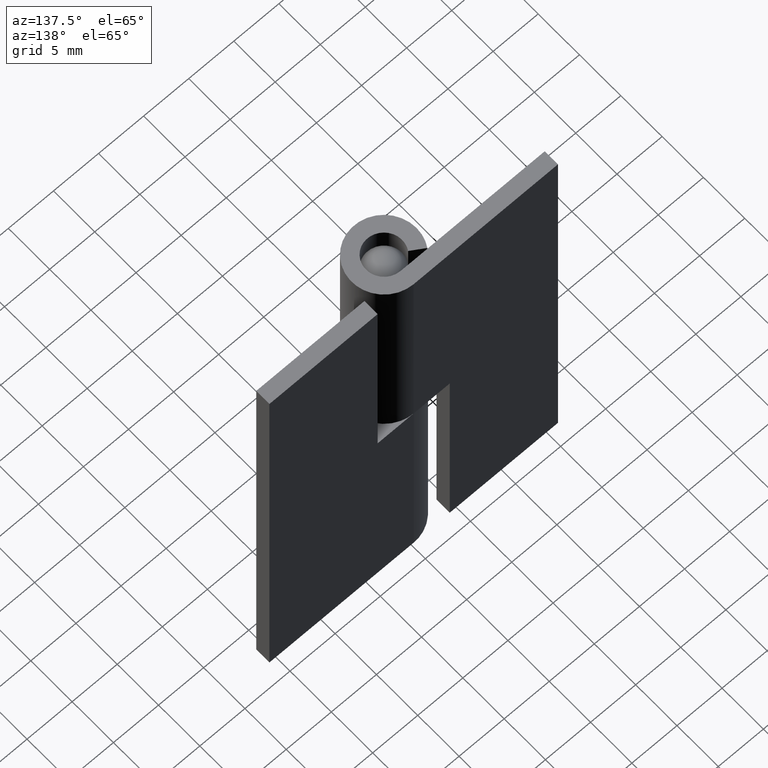
[diagram: clean part render]
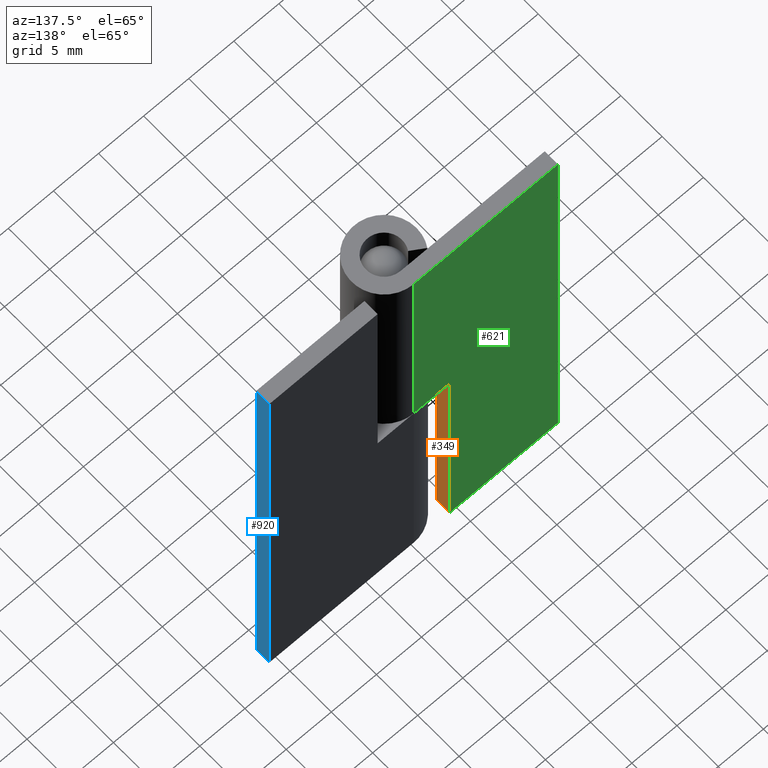
[diagram: same view with three faces highlighted in distinct colors, each labeled with its STEP entity id]
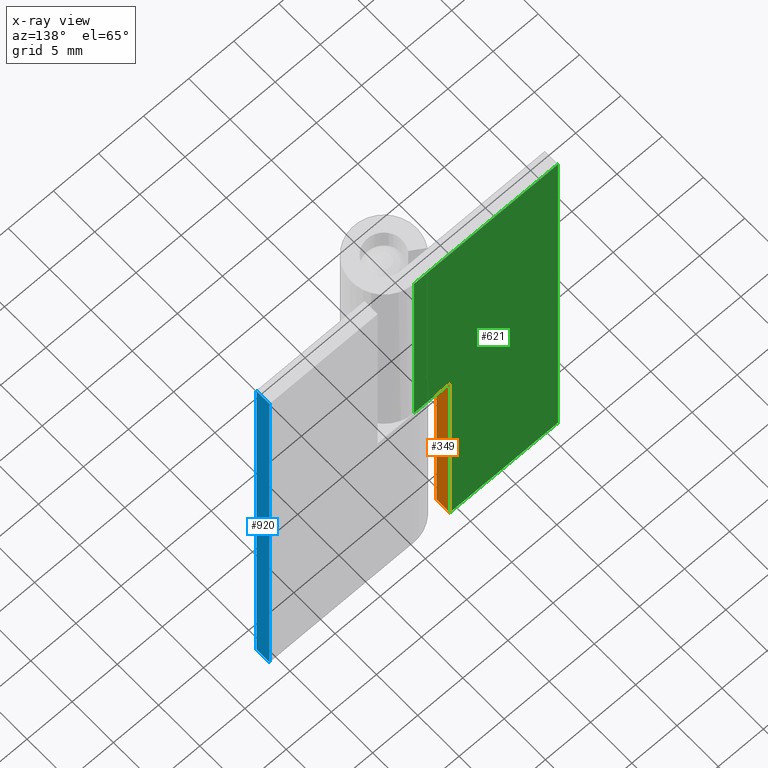
[diagram: x-ray of the same camera — body ghosted, the three highlighted faces saturated]
A machine part, auxiliary view with three faces highlighted in distinct colors.
The next image is the same camera in x-ray (body ghosted, the three faces saturated) — at least one of them is partly hidden behind the body in this view.
Their STEP definitions:

[orange] entity #349 — the highlighted face is a freeform B-spline surface patch.
#314=CARTESIAN_POINT('',(-4.0,1.920080103001107,-1.248749951545149));
#315=CARTESIAN_POINT('',(-4.0,1.920080103001107,26.248750622097401));
#316=CARTESIAN_POINT('',(-4.0,3.679917939914185,-1.248749951545149));
#317=CARTESIAN_POINT('',(-4.0,3.679917939914185,26.248750622097401));
#318=B_SPLINE_SURFACE_WITH_KNOTS('',1,1,((#314,#316),(#315,#317)),.UNSPECIFIED.,.F.,.F.,.U.,(2,2),(2,2),(0.0,27.497500573642551),(0.041708334948495,0.958291687403247),.UNSPECIFIED.);
#319=CARTESIAN_POINT('',(-4.0,2.0,25.0));
#320=VERTEX_POINT('',#319);
#321=CARTESIAN_POINT('',(-4.0,2.0,0.0));
#322=VERTEX_POINT('',#321);
#323=CARTESIAN_POINT('',(-4.0,2.0,25.0));
#324=CARTESIAN_POINT('',(-4.0,2.0,0.0));
#325=QUASI_UNIFORM_CURVE('',1,(#323,#324),.UNSPECIFIED.,.F.,.U.);
#326=EDGE_CURVE('',#320,#322,#325,.T.);
#327=ORIENTED_EDGE('',*,*,#326,.T.);
#328=CARTESIAN_POINT('',(-4.0,3.599998000000000,0.0));
#329=VERTEX_POINT('',#328);
#330=CARTESIAN_POINT('',(-4.0,3.599998000000000,0.0));
#331=CARTESIAN_POINT('',(-4.0,2.0,0.0));
#332=QUASI_UNIFORM_CURVE('',1,(#330,#331),.UNSPECIFIED.,.F.,.U.);
#333=EDGE_CURVE('',#329,#322,#332,.T.);
#334=ORIENTED_EDGE('',*,*,#333,.F.);
#335=CARTESIAN_POINT('',(-4.0,3.599998000000000,25.0));
#336=VERTEX_POINT('',#335);
#337=CARTESIAN_POINT('',(-4.0,3.599998000000000,25.0));
#338=CARTESIAN_POINT('',(-4.0,3.599998000000000,0.0));
#339=QUASI_UNIFORM_CURVE('',1,(#337,#338),.UNSPECIFIED.,.F.,.U.);
#340=EDGE_CURVE('',#336,#329,#339,.T.);
#341=ORIENTED_EDGE('',*,*,#340,.F.);
#342=CARTESIAN_POINT('',(-4.0,3.599998000000000,25.0));
#343=CARTESIAN_POINT('',(-4.0,2.0,25.0));
#344=QUASI_UNIFORM_CURVE('',1,(#342,#343),.UNSPECIFIED.,.F.,.U.);
#345=EDGE_CURVE('',#336,#320,#344,.T.);
#346=ORIENTED_EDGE('',*,*,#345,.T.);
#347=EDGE_LOOP('',(#327,#334,#341,#346));
#348=FACE_OUTER_BOUND('',#347,.T.);
#349=ADVANCED_FACE('',(#348),#318,.F.);

[blue] entity #920 — the highlighted face is a freeform B-spline surface patch.
#871=CARTESIAN_POINT('',(16.0,3.599998000000000,0.0));
#872=VERTEX_POINT('',#871);
#878=CARTESIAN_POINT('',(16.0,2.0,0.0));
#879=VERTEX_POINT('',#878);
#880=CARTESIAN_POINT('',(16.0,2.0,0.0));
#881=CARTESIAN_POINT('',(16.0,3.599998000000000,0.0));
#882=QUASI_UNIFORM_CURVE('',1,(#880,#881),.UNSPECIFIED.,.F.,.U.);
#883=EDGE_CURVE('',#879,#872,#882,.T.);
#893=CARTESIAN_POINT('',(16.0,1.920080103001107,52.497491972854569));
#894=CARTESIAN_POINT('',(16.0,1.920080103001107,-2.497500866924001));
#895=CARTESIAN_POINT('',(16.0,3.679917939914185,52.497491972854561));
#896=CARTESIAN_POINT('',(16.0,3.679917939914185,-2.497500866924001));
#897=B_SPLINE_SURFACE_WITH_KNOTS('',1,1,((#893,#895),(#894,#896)),.UNSPECIFIED.,.F.,.F.,.U.,(2,2),(2,2),(0.0,54.994992839778568),(0.041708334948495,0.958291687403247),.UNSPECIFIED.);
#898=CARTESIAN_POINT('',(16.0,2.0,49.999992000000098));
#899=VERTEX_POINT('',#898);
#900=CARTESIAN_POINT('',(16.0,3.599998000000000,49.999992000000098));
#901=VERTEX_POINT('',#900);
#902=CARTESIAN_POINT('',(16.0,2.0,49.999992000000098));
#903=CARTESIAN_POINT('',(16.0,3.599998000000000,49.999992000000098));
#904=QUASI_UNIFORM_CURVE('',1,(#902,#903),.UNSPECIFIED.,.F.,.U.);
#905=EDGE_CURVE('',#899,#901,#904,.T.);
#906=ORIENTED_EDGE('',*,*,#905,.F.);
#907=CARTESIAN_POINT('',(16.0,2.0,0.0));
#908=CARTESIAN_POINT('',(16.0,2.0,49.999992000000098));
#909=QUASI_UNIFORM_CURVE('',1,(#907,#908),.UNSPECIFIED.,.F.,.U.);
#910=EDGE_CURVE('',#879,#899,#909,.T.);
#911=ORIENTED_EDGE('',*,*,#910,.F.);
#912=ORIENTED_EDGE('',*,*,#883,.T.);
#913=CARTESIAN_POINT('',(16.0,3.599998000000000,0.0));
#914=CARTESIAN_POINT('',(16.0,3.599998000000000,49.999992000000098));
#915=QUASI_UNIFORM_CURVE('',1,(#913,#914),.UNSPECIFIED.,.F.,.U.);
#916=EDGE_CURVE('',#872,#901,#915,.T.);
#917=ORIENTED_EDGE('',*,*,#916,.T.);
#918=EDGE_LOOP('',(#906,#911,#912,#917));
#919=FACE_OUTER_BOUND('',#918,.T.);
#920=ADVANCED_FACE('',(#919),#897,.T.);

[green] entity #621 — the highlighted face is a freeform B-spline surface patch.
#328=CARTESIAN_POINT('',(-4.0,3.599998000000000,0.0));
#329=VERTEX_POINT('',#328);
#335=CARTESIAN_POINT('',(-4.0,3.599998000000000,25.0));
#336=VERTEX_POINT('',#335);
#337=CARTESIAN_POINT('',(-4.0,3.599998000000000,25.0));
#338=CARTESIAN_POINT('',(-4.0,3.599998000000000,0.0));
#339=QUASI_UNIFORM_CURVE('',1,(#337,#338),.UNSPECIFIED.,.F.,.U.);
#340=EDGE_CURVE('',#336,#329,#339,.T.);
#412=CARTESIAN_POINT('',(-0.003794732665986,3.599998000000000,25.0));
#413=VERTEX_POINT('',#412);
#414=CARTESIAN_POINT('',(-0.003794732665986,3.599998000000000,25.0));
#415=CARTESIAN_POINT('',(-4.0,3.599998000000000,25.0));
#416=QUASI_UNIFORM_CURVE('',1,(#414,#415),.UNSPECIFIED.,.F.,.U.);
#417=EDGE_CURVE('',#413,#336,#416,.T.);
#441=CARTESIAN_POINT('',(-0.003794732665986,3.599998000000000,49.999992000000098));
#442=VERTEX_POINT('',#441);
#462=CARTESIAN_POINT('',(-16.0,3.599998000000000,49.999992000000098));
#463=VERTEX_POINT('',#462);
#464=CARTESIAN_POINT('',(-0.003794732665986,3.599998000000000,49.999992000000098));
#465=CARTESIAN_POINT('',(-16.0,3.599998000000000,49.999992000000098));
#466=QUASI_UNIFORM_CURVE('',1,(#464,#465),.UNSPECIFIED.,.F.,.U.);
#467=EDGE_CURVE('',#442,#463,#466,.T.);
#518=CARTESIAN_POINT('',(-16.0,3.599998000000000,0.0));
#519=VERTEX_POINT('',#518);
#525=CARTESIAN_POINT('',(-4.0,3.599998000000000,0.0));
#526=CARTESIAN_POINT('',(-16.0,3.599998000000000,0.0));
#527=QUASI_UNIFORM_CURVE('',1,(#525,#526),.UNSPECIFIED.,.F.,.U.);
#528=EDGE_CURVE('',#329,#519,#527,.T.);
#594=CARTESIAN_POINT('',(-16.0,3.599998000000000,0.0));
#595=CARTESIAN_POINT('',(-16.0,3.599998000000000,49.999992000000098));
#596=QUASI_UNIFORM_CURVE('',1,(#594,#595),.UNSPECIFIED.,.F.,.U.);
#597=EDGE_CURVE('',#519,#463,#596,.T.);
#604=CARTESIAN_POINT('',(-16.799010422099592,3.599998000000000,-2.497499503490317));
#605=CARTESIAN_POINT('',(-16.799010422099592,3.599998000000000,52.497492844594710));
#606=CARTESIAN_POINT('',(0.795216118485258,3.599998000000000,-2.497499503490317));
#607=CARTESIAN_POINT('',(0.795216118485258,3.599998000000000,52.497492844594710));
#608=B_SPLINE_SURFACE_WITH_KNOTS('',1,1,((#604,#606),(#605,#607)),.UNSPECIFIED.,.F.,.F.,.U.,(2,2),(2,2),(0.0,54.994992348085027),(0.0,17.594226540584842),.UNSPECIFIED.);
#609=ORIENTED_EDGE('',*,*,#417,.T.);
#610=ORIENTED_EDGE('',*,*,#340,.T.);
#611=ORIENTED_EDGE('',*,*,#528,.T.);
#612=ORIENTED_EDGE('',*,*,#597,.T.);
#613=ORIENTED_EDGE('',*,*,#467,.F.);
#614=CARTESIAN_POINT('',(-0.003794732665986,3.599998000000000,25.0));
#615=CARTESIAN_POINT('',(-0.003794732665986,3.599998000000000,49.999992000000098));
#616=QUASI_UNIFORM_CURVE('',1,(#614,#615),.UNSPECIFIED.,.F.,.U.);
#617=EDGE_CURVE('',#413,#442,#616,.T.);
#618=ORIENTED_EDGE('',*,*,#617,.F.);
#619=EDGE_LOOP('',(#609,#610,#611,#612,#613,#618));
#620=FACE_OUTER_BOUND('',#619,.T.);
#621=ADVANCED_FACE('',(#620),#608,.T.);